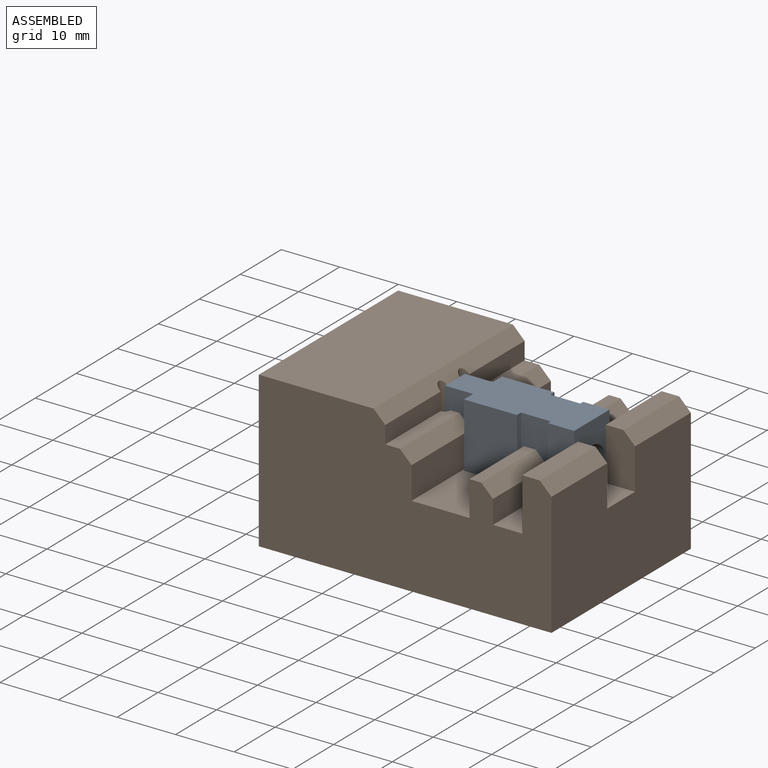
[diagram: assembled view]
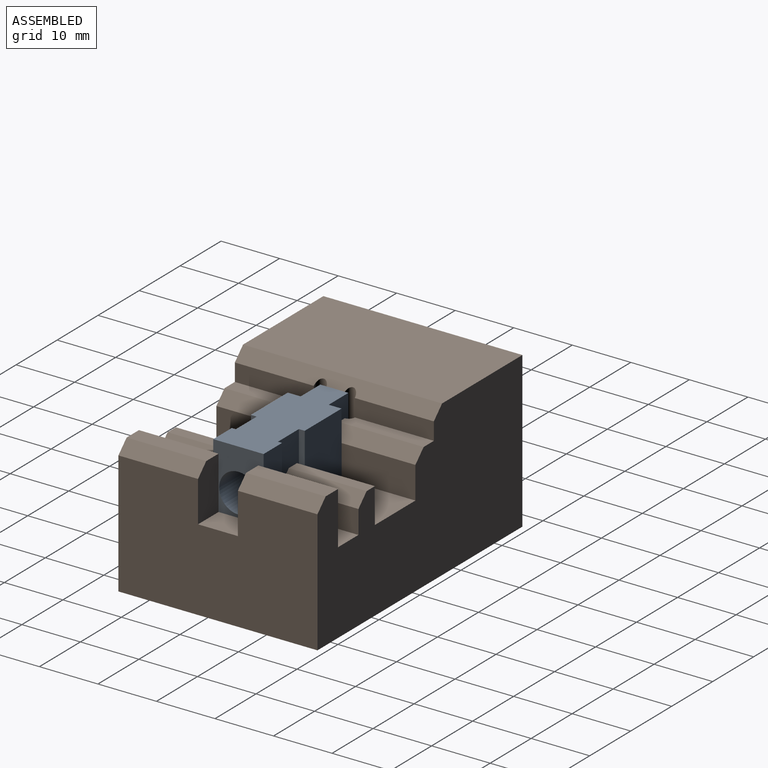
[diagram: assembled view, second angle]
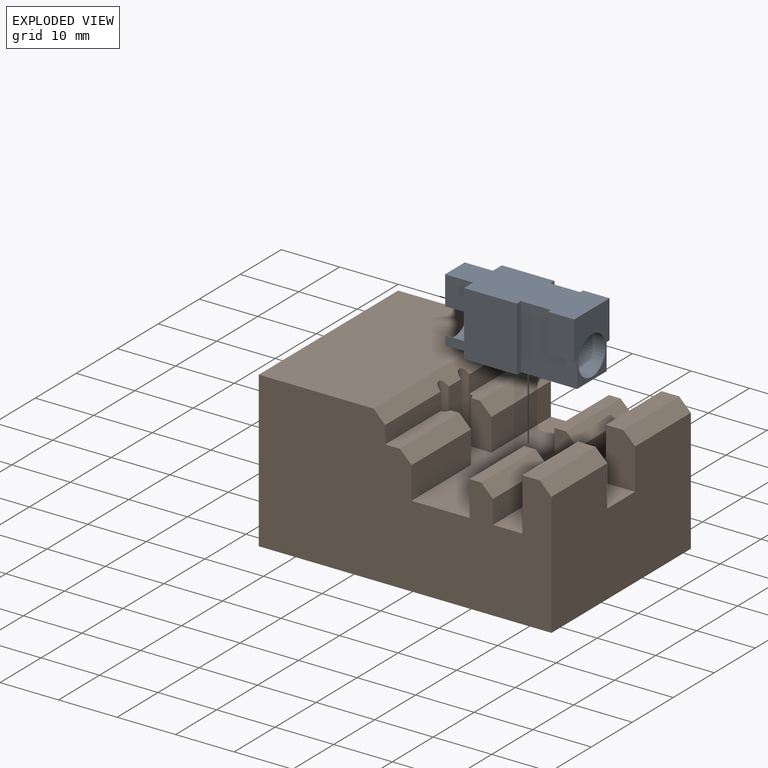
[diagram: exploded view]
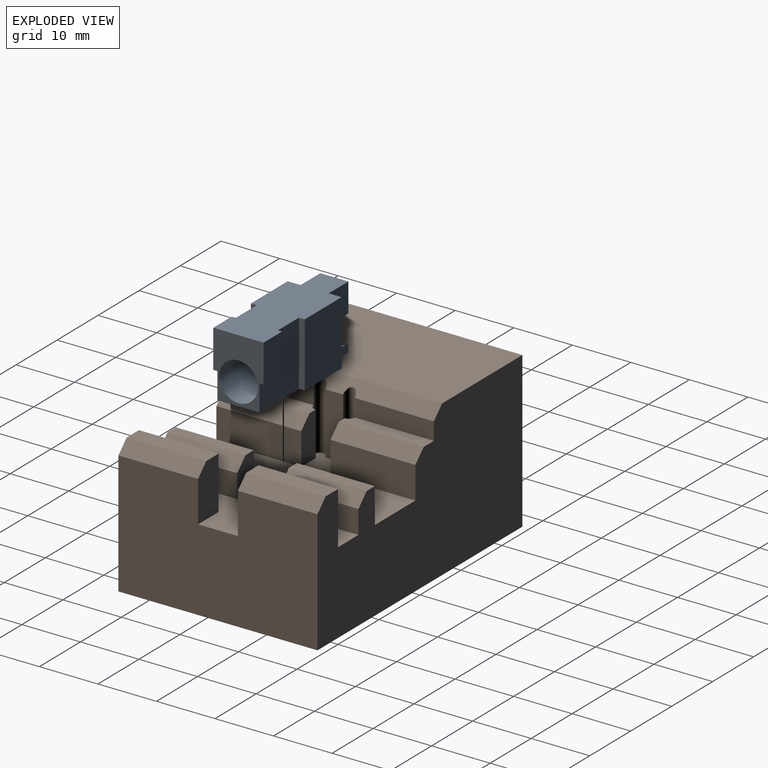
[diagram: exploded view, second angle]
ASSEMBLY  parts=2 mates=2
PART A: 24 faces, bbox 9.2x23.4x11 mm
  f0: plane 11x2.2mm, normal (0,1,0), area 21.4mm2, adj f3,f4,f5,f12,f13,f14
  f1: plane 11x9.6mm, normal (-1,0,0), area 76.3mm2, adj f4,f5,f8,f16,f21,f22
  f2: plane 11x9.6mm, normal (1,0,0), area 76.3mm2, adj f4,f5,f8,f15,f19,f20
  f3: cylinder r=3.3mm len=23.4mm, axis (0,1,0), area 437.3mm2, adj f0,f6,f7,f8,f9,f10,f11,f12
  f4: plane 23.4x9.2mm, normal (0,0,1), area 181.3mm2, adj f0,f1,f2,f7,f8,f10,f11,f13
  f5: plane 23.4x9.2mm, normal (0,0,-1), area 175mm2, adj f0,f1,f2,f6,f8,f9,f11,f12
  f6: plane 4.8x1.54mm, normal (0,1,0), area 3.9mm2, adj f3,f5,f9,f12
  f7: plane 4.94x4.8mm, normal (0,1,0), area 20.3mm2, adj f3,f4,f10,f13
  f8: plane 11x8.6mm, normal (0,-1,0), area 54.1mm2, adj f1,f2,f3,f4,f5,f18,f19,f21
  f9: plane 4.8x1.54mm, normal (-1,0,0), area 7.4mm2, adj f3,f5,f6,f11
  f10: plane 4.94x4.8mm, normal (-1,0,0), area 23.7mm2, adj f3,f4,f7,f11
  f11: plane 11x2.2mm, normal (0,1,0), area 21.4mm2, adj f3,f4,f5,f9,f10,f17
  f12: plane 4.8x1.54mm, normal (1,0,0), area 7.4mm2, adj f0,f3,f5,f6
  f13: plane 4.94x4.8mm, normal (1,0,0), area 23.7mm2, adj f0,f3,f4,f7
  f14: plane 11x9mm, normal (1,0,0), area 99mm2, adj f0,f4,f5,f15
  f15: plane 11x1mm, normal (0,-1,0), area 11mm2, adj f2,f4,f5,f14
  f16: plane 11x1mm, normal (0,-1,0), area 11mm2, adj f1,f4,f5,f17
  f17: plane 11x9mm, normal (-1,0,0), area 99mm2, adj f4,f5,f11,f16
  f18: plane 6.5x4.5mm, normal (1,0,0), area 29.2mm2, adj f4,f8,f19,f20
  f19: plane 4.5x0.7mm, normal (0,0,-1), area 3.1mm2, adj f2,f8,f18,f20
  f20: plane 6.5x0.7mm, normal (0,1,0), area 4.5mm2, adj f2,f4,f18,f19
  f21: plane 4.5x0.7mm, normal (0,0,-1), area 3.2mm2, adj f1,f8,f22,f23
  f22: plane 6.5x0.7mm, normal (0,1,0), area 4.6mm2, adj f1,f4,f21,f23
  f23: plane 6.5x4.5mm, normal (-1,0,0), area 29.2mm2, adj f4,f8,f21,f22
PART B: 41 faces, bbox 50x34x26.5 mm
  f0: plane 10.5x3mm, normal (1,0,0), area 31.5mm2, adj f15,f38,f39,f40
  f1: plane 13.5x3mm, normal (1,0,0), area 40.5mm2, adj f3,f10,f38,f40
  f2: plane 14.5x2.5mm, normal (0,0,1), area 35.5mm2, adj f8,f17,f28,f31,f39
  f3: plane 14.5x2.5mm, normal (0,0,1), area 35.5mm2, adj f1,f10,f29,f32,f38
  f4: plane 14.5x5.5mm, normal (1,0,0), area 79.8mm2, adj f10,f15,f29,f32
  f5: plane 34x26.5mm, normal (-1,0,0), area 862.5mm2, adj f8,f10,f23,f26,f37
  f6: plane 13.3x2mm, normal (0,0,1), area 26.6mm2, adj f10,f13,f14,f35
  f7: plane 13.3x2mm, normal (0,0,1), area 26.6mm2, adj f8,f11,f12,f36
  f8: plane 50x26.5mm, normal (0,-1,0), area 1064.7mm2, adj f2,f5,f7,f9,f11,f15,f16,f17
  f9: plane 13.3x4mm, normal (1,0,0), area 53.2mm2, adj f8,f12,f15,f36
  f10: plane 50x26.5mm, normal (0,1,0), area 1064.7mm2, adj f1,f3,f4,f5,f6,f13,f15,f18
  f11: plane 13.3x6mm, normal (-1,0,0), area 79.8mm2, adj f7,f8,f12,f15
  f12: plane 6x4mm, normal (0,1,0), area 22mm2, adj f7,f9,f11,f15,f36
  f13: plane 13.3x6mm, normal (-1,0,0), area 79.8mm2, adj f6,f10,f14,f15
  f14: plane 6x4mm, normal (0,-1,0), area 22mm2, adj f6,f13,f15,f30,f35
  f15: plane 34x29.4mm, normal (0,0,1), area 597.4mm2, adj f0,f4,f8,f9,f10,f11,f12,f13
  f16: plane 14.5x5.5mm, normal (1,0,0), area 79.8mm2, adj f8,f15,f28,f31
  f17: plane 13.5x3mm, normal (1,0,0), area 40.5mm2, adj f2,f8,f39,f40
  f18: plane 13.6x3mm, normal (0,0,1), area 40.8mm2, adj f10,f22,f24,f34
  f19: plane 13.6x9mm, normal (-1,0,0), area 122.4mm2, adj f8,f15,f21,f25
  f20: plane 34x21mm, normal (1,0,0), area 666.4mm2, adj f8,f10,f15,f23,f24,f25,f33,f34
  f21: plane 13.6x3mm, normal (0,0,1), area 40.8mm2, adj f8,f19,f25,f33
  f22: plane 13.6x9mm, normal (-1,0,0), area 122.4mm2, adj f10,f15,f18,f24
  f23: plane 50x34mm, normal (0,0,-1), area 1700mm2, adj f5,f8,f10,f20
  f24: plane 9x5mm, normal (0,-1,0), area 43mm2, adj f15,f18,f20,f22,f34
  f25: plane 9x5mm, normal (0,1,0), area 43mm2, adj f15,f19,f20,f21,f33
  f26: cylinder r=3.5mm len=7mm, axis (-1,0,0), area 131.9mm2, adj f5,f27
  f27: plane 7x7mm, normal (-1,0,0), area 38.5mm2, adj f26
  f28: plane 7.5x3.5mm, normal (0,1,0), area 24.2mm2, adj f2,f15,f16,f31,f39
  f29: plane 7.5x3.5mm, normal (0,-1,0), area 24.2mm2, adj f3,f4,f15,f32,f38
  f30: plane 13.3x4mm, normal (1,0,0), area 53.2mm2, adj f10,f14,f15,f35
  f31: plane 14.5x2mm, normal (0.71,0,0.71), area 41mm2, adj f2,f8,f16,f28
  f32: plane 14.5x2mm, normal (0.71,0,0.71), area 41mm2, adj f3,f4,f10,f29
  f33: plane 13.6x2mm, normal (0.71,0,0.71), area 38.5mm2, adj f8,f20,f21,f25
  f34: plane 13.6x2mm, normal (0.71,0,0.71), area 38.5mm2, adj f10,f18,f20,f24
  f35: plane 13.3x2mm, normal (0.71,0,0.71), area 37.6mm2, adj f6,f10,f14,f30
  f36: plane 13.3x2mm, normal (0.71,0,0.71), area 37.6mm2, adj f7,f8,f9,f12
  f37: plane 34x19.6mm, normal (0,0,1), area 666.4mm2, adj f5,f8,f10,f40
  f38: cylinder r=1mm len=11.5mm, axis (0,0,1), area 46.8mm2, adj f0,f1,f3,f15,f29,f40
  f39: cylinder r=1mm len=11.5mm, axis (0,0,1), area 46.8mm2, adj f0,f2,f15,f17,f28,f40
  f40: plane 34x2mm, normal (0.71,0,0.71), area 91.7mm2, adj f0,f1,f8,f10,f17,f37,f38,f39
PLACE A rot(axis=(0,0,1),90deg) t=(-3.4,-17,6.5)mm
PLACE B at identity fixed
MATE parallel A.f8 <-> B.f19  axis (1,0,0) through (20,-17,7.95)mm
MATE parallel A.f5 <-> B.f15  axis (0,0,-1) through (8.67,-17,1)mm
